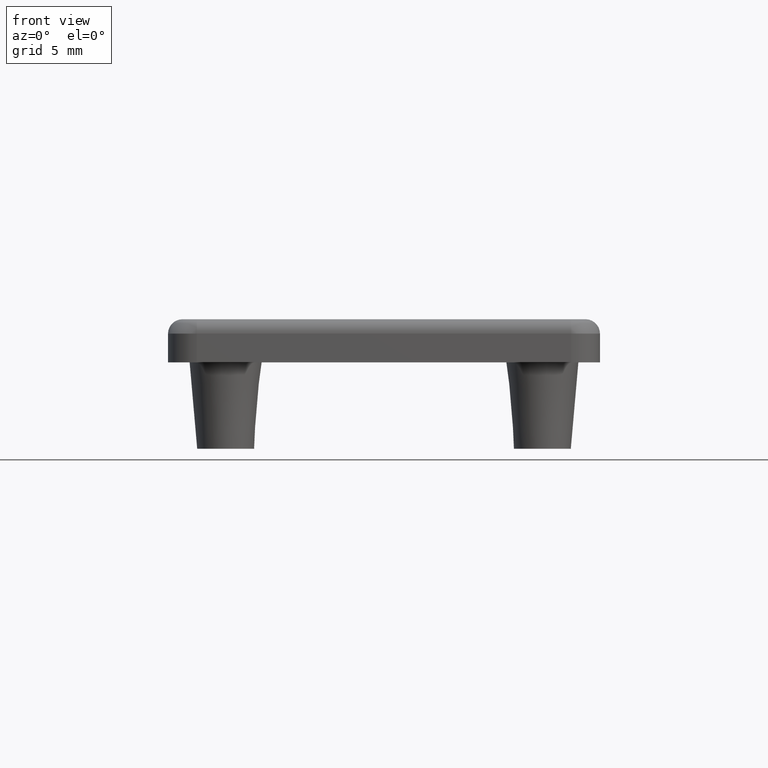
[diagram: clean part render]
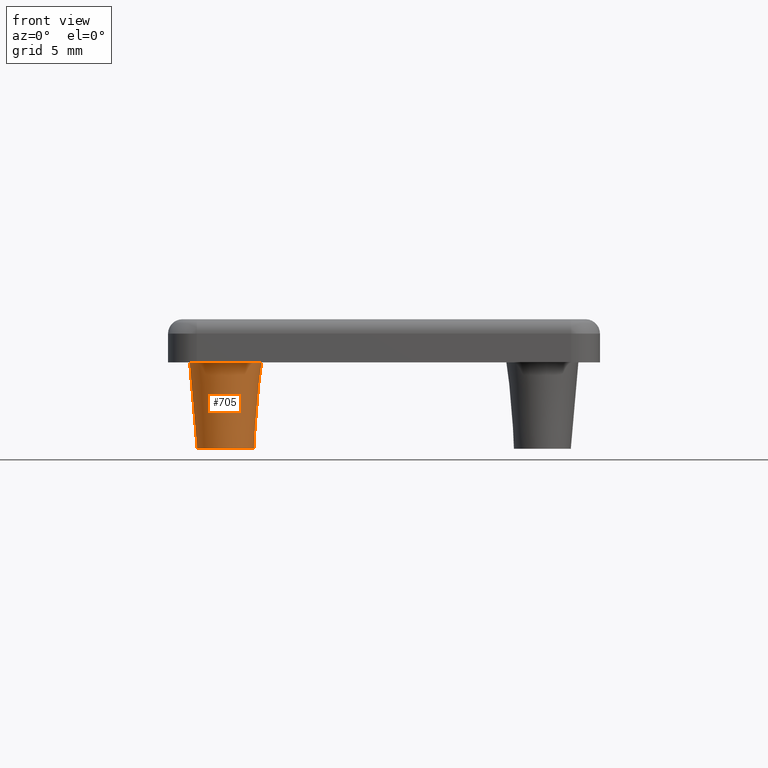
[diagram: same view with one face highlighted and labeled with its STEP entity id]
A machine part, front view. The second image highlights one B-rep face of the part: STEP entity #705.
In plain terms, the highlighted conical surface has half-angle 5 deg.
Its self-contained STEP definition (entity closure, byte-faithful):
#15=CONICAL_SURFACE('',#795,2.44750680188444,5.00000000000002);
#54=FACE_BOUND('',#151,.T.);
#99=FACE_OUTER_BOUND('',#150,.T.);
#150=EDGE_LOOP('',(#634));
#151=EDGE_LOOP('',(#635));
#182=CIRCLE('',#731,2.5);
#222=CIRCLE('',#796,1.97506801884446);
#318=VERTEX_POINT('',#1083);
#355=VERTEX_POINT('',#1937);
#381=EDGE_CURVE('',#318,#318,#182,.T.);
#452=EDGE_CURVE('',#355,#355,#222,.T.);
#634=ORIENTED_EDGE('',*,*,#381,.F.);
#635=ORIENTED_EDGE('',*,*,#452,.T.);
#705=ADVANCED_FACE('',(#99,#54),#15,.T.);
#731=AXIS2_PLACEMENT_3D('',#1084,#848,#849);
#795=AXIS2_PLACEMENT_3D('',#1936,#1005,#1006);
#796=AXIS2_PLACEMENT_3D('',#1938,#1007,#1008);
#848=DIRECTION('center_axis',(0.,0.,1.));
#849=DIRECTION('ref_axis',(1.,0.,0.));
#1005=DIRECTION('center_axis',(-5.68549215482706E-14,1.74642457248295E-16,
1.));
#1006=DIRECTION('ref_axis',(0.813826036051075,0.581108581114919,4.616852920309E-14));
#1007=DIRECTION('center_axis',(0.,0.,1.));
#1008=DIRECTION('ref_axis',(1.,0.,0.));
#1083=CARTESIAN_POINT('',(-2.5,1.578984E-14,-1.421085E-13));
#1084=CARTESIAN_POINT('Origin',(0.,0.,0.));
#1936=CARTESIAN_POINT('Origin',(3.49720252756924E-14,2.4980018054066E-15,
-0.6));
#1937=CARTESIAN_POINT('',(-1.97506801884412,1.24744E-14,-6.00000000000011));
#1938=CARTESIAN_POINT('Origin',(3.410605E-13,0.,-6.));